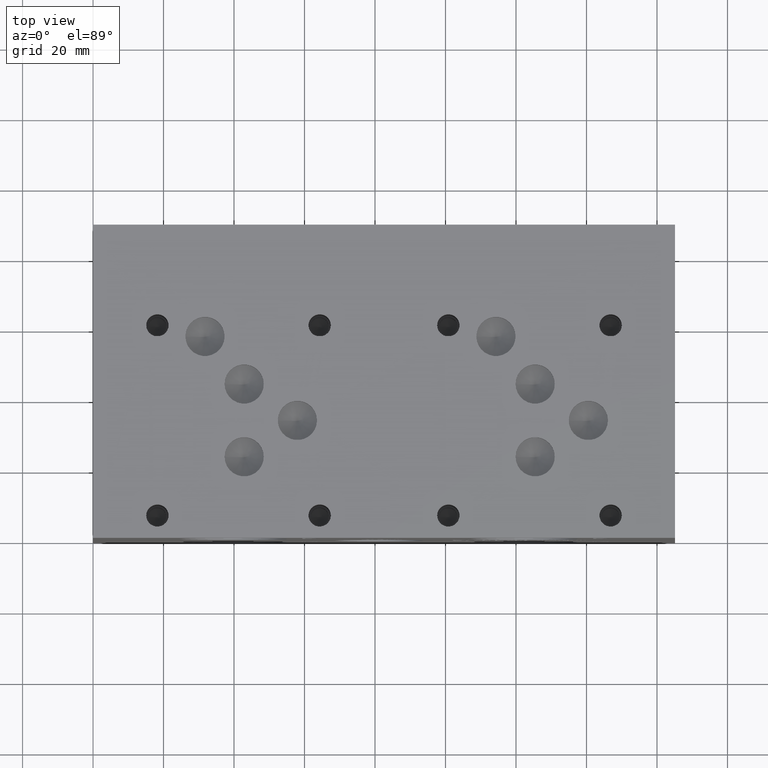
[diagram: clean part render]
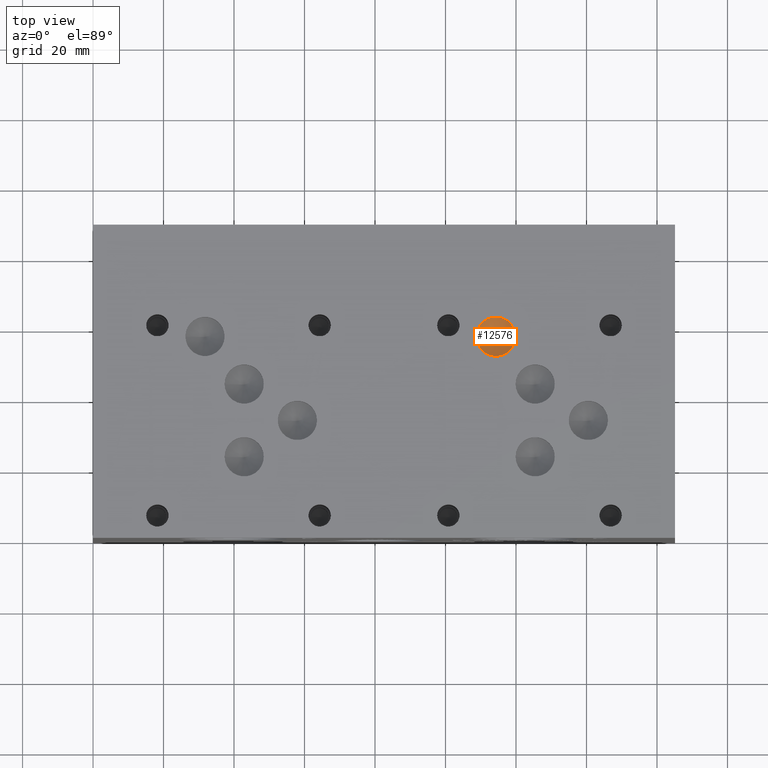
[diagram: same view with one face highlighted and labeled with its STEP entity id]
A machine part, top view. The second image highlights one B-rep face of the part: STEP entity #12576.
In plain terms, the highlighted conical surface has half-angle 60 deg.
Its self-contained STEP definition (entity closure, byte-faithful):
#141=CONICAL_SURFACE('',#13330,2.7813,1.0471975511966);
#402=CIRCLE('',#13331,5.5626);
#403=CIRCLE('',#13332,5.5626);
#1517=FACE_OUTER_BOUND('',#2250,.T.);
#2250=EDGE_LOOP('',(#11164,#11165,#11166,#11167));
#3404=LINE('',#21700,#4530);
#4530=VECTOR('',#15934,2.7813);
#6038=VERTEX_POINT('',#21696);
#6039=VERTEX_POINT('',#21697);
#6040=VERTEX_POINT('',#21699);
#7773=EDGE_CURVE('',#6038,#6039,#402,.T.);
#7774=EDGE_CURVE('',#6039,#6040,#3404,.T.);
#7775=EDGE_CURVE('',#6039,#6038,#403,.T.);
#11164=ORIENTED_EDGE('',*,*,#7773,.T.);
#11165=ORIENTED_EDGE('',*,*,#7774,.T.);
#11166=ORIENTED_EDGE('',*,*,#7774,.F.);
#11167=ORIENTED_EDGE('',*,*,#7775,.T.);
#12576=ADVANCED_FACE('',(#1517),#141,.F.);
#13330=AXIS2_PLACEMENT_3D('',#21695,#15930,#15931);
#13331=AXIS2_PLACEMENT_3D('',#21698,#15932,#15933);
#13332=AXIS2_PLACEMENT_3D('',#21701,#15935,#15936);
#15930=DIRECTION('center_axis',(0.,0.,1.));
#15931=DIRECTION('ref_axis',(1.,0.,0.));
#15932=DIRECTION('center_axis',(0.,0.,1.));
#15933=DIRECTION('ref_axis',(1.,0.,0.));
#15934=DIRECTION('',(0.866025403784439,1.06057523872491E-16,-0.5));
#15935=DIRECTION('center_axis',(0.,0.,1.));
#15936=DIRECTION('ref_axis',(1.,0.,0.));
#21695=CARTESIAN_POINT('Origin',(114.3,57.15,84.0826456963029));
#21696=CARTESIAN_POINT('',(119.8626,57.15,85.68843));
#21697=CARTESIAN_POINT('',(108.7374,57.15,85.68843));
#21698=CARTESIAN_POINT('Origin',(114.3,57.15,85.68843));
#21699=CARTESIAN_POINT('',(114.3,57.15,82.4768613926058));
#21700=CARTESIAN_POINT('',(111.5187,57.15,84.0826456963029));
#21701=CARTESIAN_POINT('Origin',(114.3,57.15,85.68843));